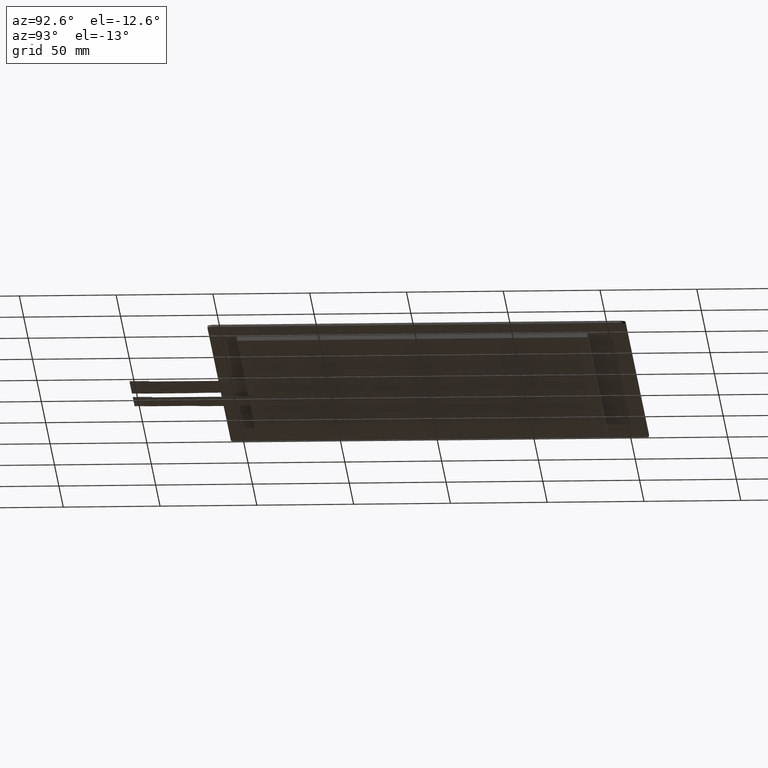
[diagram: clean part render]
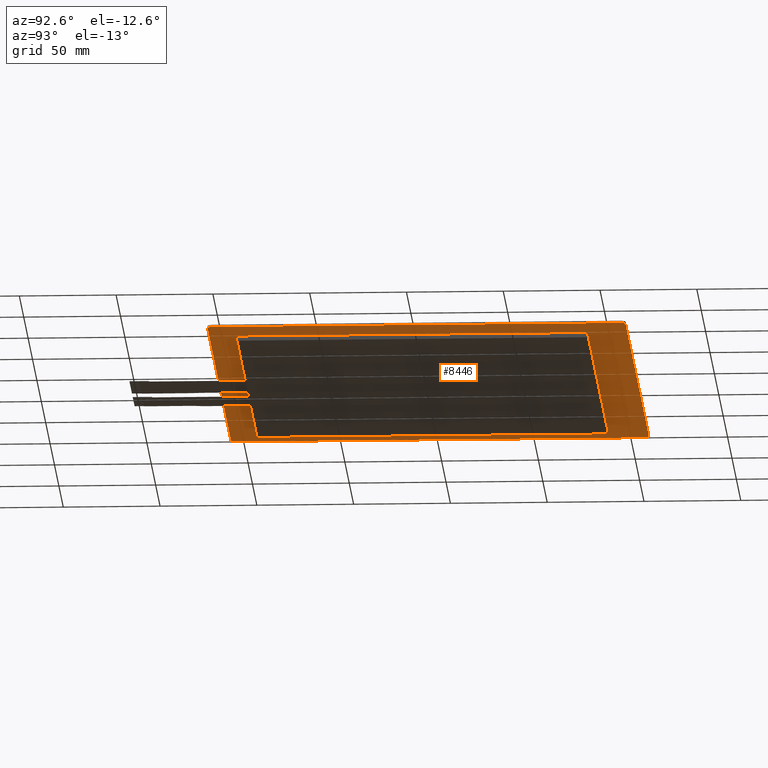
[diagram: same view with one face highlighted and labeled with its STEP entity id]
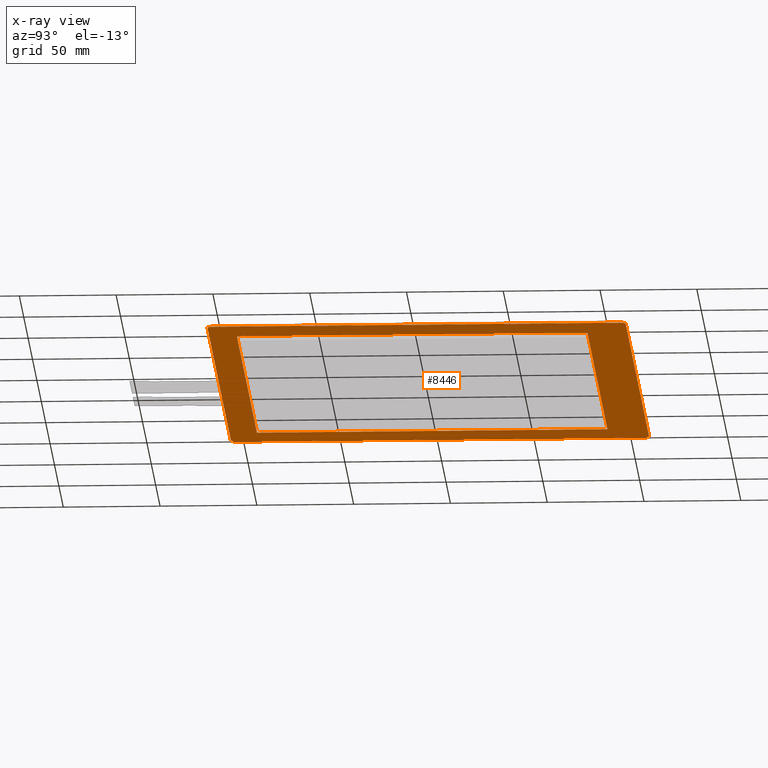
[diagram: x-ray of the same camera — body ghosted, the highlighted face saturated]
A machine part, auxiliary view. The second image highlights one B-rep face of the part: STEP entity #8446.
The next image is the same camera in x-ray: the body ghosted, the highlighted face saturated — about 0% of this face is hidden behind the body in this view.
In plain terms, the highlighted planar face has unit normal (0, 0, 1).
Its self-contained STEP definition (entity closure, byte-faithful):
#31=FACE_BOUND('',#506,.T.);
#51=CIRCLE('',#8888,3.);
#55=CIRCLE('',#8895,3.);
#56=CIRCLE('',#8898,3.);
#57=CIRCLE('',#8900,3.);
#79=FACE_OUTER_BOUND('',#505,.T.);
#505=EDGE_LOOP('',(#5563,#5564,#5565,#5566,#5567,#5568,#5569,#5570));
#506=EDGE_LOOP('',(#5571,#5572,#5573,#5574));
#936=LINE('',#11473,#2181);
#946=LINE('',#11502,#2191);
#950=LINE('',#11513,#2195);
#951=LINE('',#11514,#2196);
#952=LINE('',#11517,#2197);
#953=LINE('',#11519,#2198);
#954=LINE('',#11521,#2199);
#955=LINE('',#11522,#2200);
#2181=VECTOR('',#9353,10.);
#2191=VECTOR('',#9377,10.);
#2195=VECTOR('',#9391,10.);
#2196=VECTOR('',#9392,10.);
#2197=VECTOR('',#9393,10.);
#2198=VECTOR('',#9394,10.);
#2199=VECTOR('',#9395,10.);
#2200=VECTOR('',#9396,10.);
#3420=VERTEX_POINT('',#11463);
#3421=VERTEX_POINT('',#11465);
#3423=VERTEX_POINT('',#11471);
#3433=VERTEX_POINT('',#11495);
#3434=VERTEX_POINT('',#11497);
#3435=VERTEX_POINT('',#11501);
#3436=VERTEX_POINT('',#11505);
#3437=VERTEX_POINT('',#11509);
#3438=VERTEX_POINT('',#11515);
#3439=VERTEX_POINT('',#11516);
#3440=VERTEX_POINT('',#11518);
#3441=VERTEX_POINT('',#11520);
#4262=EDGE_CURVE('',#3420,#3421,#51,.T.);
#4266=EDGE_CURVE('',#3423,#3420,#936,.T.);
#4278=EDGE_CURVE('',#3433,#3434,#55,.T.);
#4280=EDGE_CURVE('',#3434,#3435,#946,.T.);
#4282=EDGE_CURVE('',#3435,#3436,#56,.T.);
#4285=EDGE_CURVE('',#3437,#3423,#57,.T.);
#4286=EDGE_CURVE('',#3436,#3437,#950,.T.);
#4287=EDGE_CURVE('',#3421,#3433,#951,.T.);
#4288=EDGE_CURVE('',#3438,#3439,#952,.T.);
#4289=EDGE_CURVE('',#3439,#3440,#953,.T.);
#4290=EDGE_CURVE('',#3440,#3441,#954,.T.);
#4291=EDGE_CURVE('',#3441,#3438,#955,.T.);
#5563=ORIENTED_EDGE('',*,*,#4262,.F.);
#5564=ORIENTED_EDGE('',*,*,#4266,.F.);
#5565=ORIENTED_EDGE('',*,*,#4285,.F.);
#5566=ORIENTED_EDGE('',*,*,#4286,.F.);
#5567=ORIENTED_EDGE('',*,*,#4282,.F.);
#5568=ORIENTED_EDGE('',*,*,#4280,.F.);
#5569=ORIENTED_EDGE('',*,*,#4278,.F.);
#5570=ORIENTED_EDGE('',*,*,#4287,.F.);
#5571=ORIENTED_EDGE('',*,*,#4288,.T.);
#5572=ORIENTED_EDGE('',*,*,#4289,.T.);
#5573=ORIENTED_EDGE('',*,*,#4290,.T.);
#5574=ORIENTED_EDGE('',*,*,#4291,.T.);
#8022=PLANE('',#8901);
#8446=ADVANCED_FACE('',(#79,#31),#8022,.F.);
#8888=AXIS2_PLACEMENT_3D('',#11466,#9346,#9347);
#8895=AXIS2_PLACEMENT_3D('',#11498,#9372,#9373);
#8898=AXIS2_PLACEMENT_3D('',#11506,#9381,#9382);
#8900=AXIS2_PLACEMENT_3D('',#11511,#9387,#9388);
#8901=AXIS2_PLACEMENT_3D('',#11512,#9389,#9390);
#9346=DIRECTION('center_axis',(0.,0.,1.));
#9347=DIRECTION('ref_axis',(0.707106781186548,0.707106781186548,0.));
#9353=DIRECTION('',(-8.22387425648264E-17,1.,0.));
#9372=DIRECTION('center_axis',(0.,0.,1.));
#9373=DIRECTION('ref_axis',(-0.707106781186548,0.707106781186548,0.));
#9377=DIRECTION('',(1.64477485129653E-16,-1.,0.));
#9381=DIRECTION('center_axis',(0.,0.,1.));
#9382=DIRECTION('ref_axis',(-0.707106781186548,-0.707106781186548,0.));
#9387=DIRECTION('center_axis',(0.,0.,1.));
#9388=DIRECTION('ref_axis',(0.707106781186552,-0.707106781186543,0.));
#9389=DIRECTION('center_axis',(0.,0.,1.));
#9390=DIRECTION('ref_axis',(1.,0.,0.));
#9391=DIRECTION('',(1.,1.95921710227969E-16,0.));
#9392=DIRECTION('',(-1.,0.,0.));
#9393=DIRECTION('',(1.96174140187769E-16,-1.,0.));
#9394=DIRECTION('',(1.,2.32608927027532E-16,0.));
#9395=DIRECTION('',(-9.80870700938846E-17,1.,0.));
#9396=DIRECTION('',(-1.,0.,0.));
#11463=CARTESIAN_POINT('',(136.,104.9,0.));
#11465=CARTESIAN_POINT('',(133.,107.9,0.));
#11466=CARTESIAN_POINT('Origin',(133.,104.9,0.));
#11471=CARTESIAN_POINT('',(136.,-105.1,0.));
#11473=CARTESIAN_POINT('',(136.,-108.1,0.));
#11495=CARTESIAN_POINT('',(-133.,107.9,0.));
#11497=CARTESIAN_POINT('',(-136.,104.9,0.));
#11498=CARTESIAN_POINT('Origin',(-133.,104.9,0.));
#11501=CARTESIAN_POINT('',(-136.,-105.1,0.));
#11502=CARTESIAN_POINT('',(-136.,107.9,0.));
#11505=CARTESIAN_POINT('',(-133.,-108.1,0.));
#11506=CARTESIAN_POINT('Origin',(-133.,-105.1,0.));
#11509=CARTESIAN_POINT('',(133.,-108.1,0.));
#11511=CARTESIAN_POINT('Origin',(133.,-105.1,0.));
#11512=CARTESIAN_POINT('Origin',(5.32907051820075E-14,-0.0999999999999535,
0.));
#11513=CARTESIAN_POINT('',(-136.,-108.1,0.));
#11514=CARTESIAN_POINT('',(136.,107.9,0.));
#11515=CARTESIAN_POINT('',(-115.3,87.3000000000001,0.));
#11516=CARTESIAN_POINT('',(-115.3,-93.8,0.));
#11517=CARTESIAN_POINT('',(-115.3,87.3000000000001,0.));
#11518=CARTESIAN_POINT('',(113.8,-93.7999999999999,0.));
#11519=CARTESIAN_POINT('',(-115.3,-93.8,0.));
#11520=CARTESIAN_POINT('',(113.8,87.3000000000001,0.));
#11521=CARTESIAN_POINT('',(113.8,-93.7999999999999,0.));
#11522=CARTESIAN_POINT('',(113.8,87.3000000000001,0.));